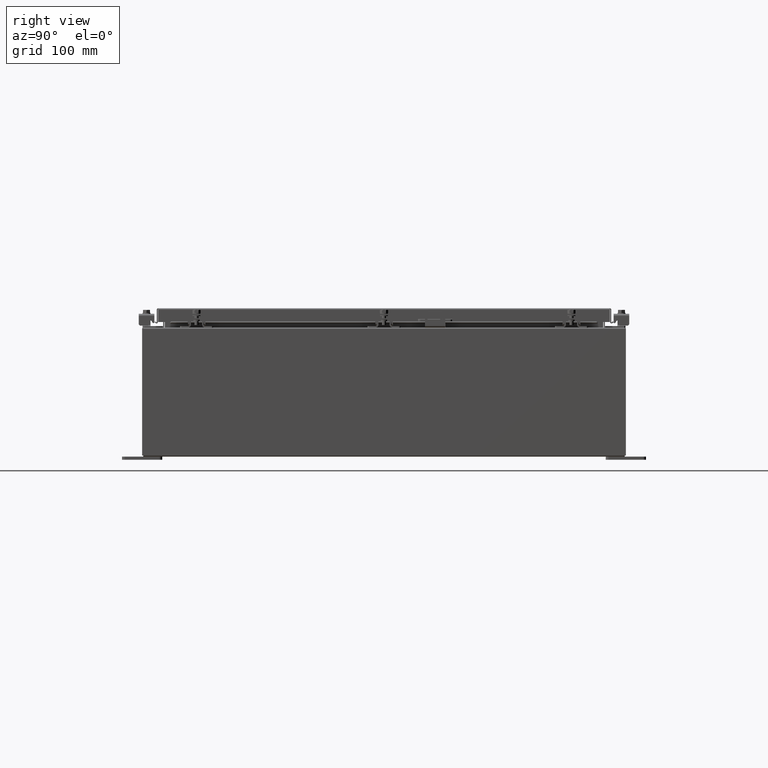
[diagram: clean part render]
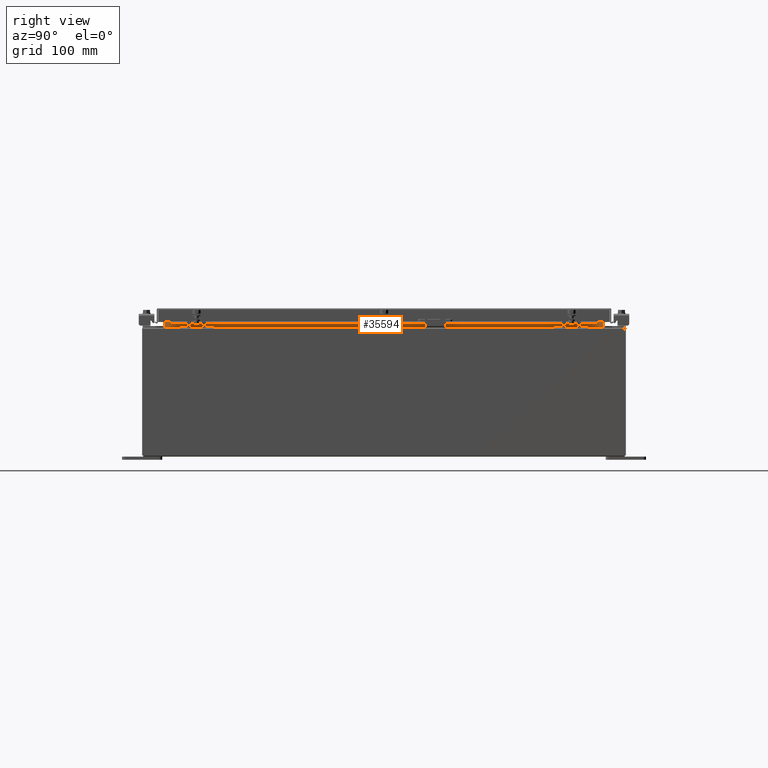
[diagram: same view with one face highlighted and labeled with its STEP entity id]
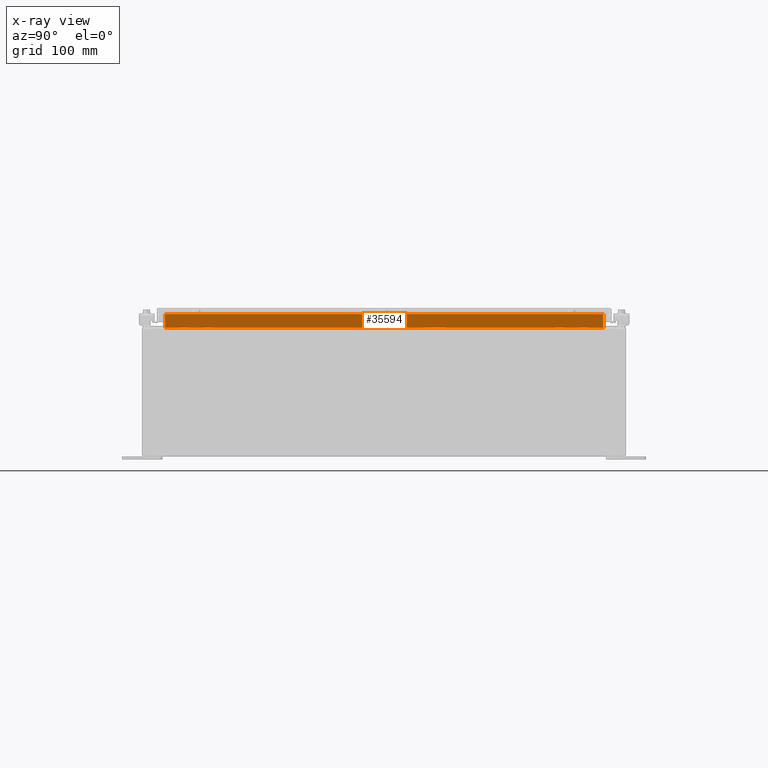
[diagram: x-ray of the same camera — body ghosted, the highlighted face saturated]
A machine part, right view. The second image highlights one B-rep face of the part: STEP entity #35594.
The next image is the same camera in x-ray: the body ghosted, the highlighted face saturated — about 0% of this face is hidden behind the body in this view.
In plain terms, the highlighted planar face has unit normal (1, 0, -0).
Its self-contained STEP definition (entity closure, byte-faithful):
#460 = CARTESIAN_POINT ( 'NONE',  ( 13.69970000000003000, 13.59375000000000200, 7.925300000000007100 ) ) ;
#1938 = ORIENTED_EDGE ( 'NONE', *, *, #18844, .F. ) ;
#1941 = VERTEX_POINT ( 'NONE', #22922 ) ;
#2640 = CARTESIAN_POINT ( 'NONE',  ( 13.69970000000003200, -13.59375000000000200, 8.850600000000007100 ) ) ;
#3001 = CARTESIAN_POINT ( 'NONE',  ( 13.69970000000003200, 13.59375000000000200, 8.762900000000007200 ) ) ;
#4916 = VECTOR ( 'NONE', #23511, 39.37007874015748100 ) ;
#6537 = VERTEX_POINT ( 'NONE', #8404 ) ;
#7351 = PLANE ( 'NONE',  #27052 ) ;
#8404 = CARTESIAN_POINT ( 'NONE',  ( 13.69970000000003000, -13.59375000000000400, 7.938300000000010600 ) ) ;
#9483 = DIRECTION ( 'NONE',  ( -2.361913319930196000E-015, -0.0000000000000000000, -1.000000000000000000 ) ) ;
#10400 = CARTESIAN_POINT ( 'NONE',  ( 13.69970000000001100, 0.0000000000000000000, -3.235750390904772800E-014 ) ) ;
#11330 = VERTEX_POINT ( 'NONE', #17872 ) ;
#11977 = LINE ( 'NONE', #460, #34816 ) ;
#13764 = VERTEX_POINT ( 'NONE', #3001 ) ;
#15842 = LINE ( 'NONE', #15846, #30769 ) ;
#15846 = CARTESIAN_POINT ( 'NONE',  ( 13.69970000000003200, -13.59375000000000200, 8.762900000000007200 ) ) ;
#16380 = DIRECTION ( 'NONE',  ( -2.361913319930196000E-015, 0.0000000000000000000, -1.000000000000000000 ) ) ;
#16493 = CARTESIAN_POINT ( 'NONE',  ( 13.69970000000003000, 13.59375000000000200, 7.938300000000007900 ) ) ;
#17201 = ORIENTED_EDGE ( 'NONE', *, *, #27530, .F. ) ;
#17872 = CARTESIAN_POINT ( 'NONE',  ( 13.69970000000003200, -13.59375000000000200, 8.762900000000007200 ) ) ;
#18830 = DIRECTION ( 'NONE',  ( 0.0000000000000000000, 1.000000000000000000, 0.0000000000000000000 ) ) ;
#18844 = EDGE_CURVE ( 'NONE', #13764, #1941, #11977, .T. ) ;
#19301 = EDGE_CURVE ( 'NONE', #6537, #11330, #20801, .T. ) ;
#20801 = LINE ( 'NONE', #2640, #4916 ) ;
#22337 = ORIENTED_EDGE ( 'NONE', *, *, #31031, .F. ) ;
#22359 = DIRECTION ( 'NONE',  ( 8.038541222736220000E-017, -1.000000000000000000, 2.411562366820865800E-016 ) ) ;
#22922 = CARTESIAN_POINT ( 'NONE',  ( 13.69970000000003000, 13.59374999999998600, 7.938300000000010600 ) ) ;
#23511 = DIRECTION ( 'NONE',  ( 2.361913319930201500E-015, -0.0000000000000000000, 1.000000000000000000 ) ) ;
#27052 = AXIS2_PLACEMENT_3D ( 'NONE', #10400, #34263, #16380 ) ;
#27530 = EDGE_CURVE ( 'NONE', #1941, #6537, #30739, .T. ) ;
#28844 = VECTOR ( 'NONE', #22359, 39.37007874015748100 ) ;
#30739 = LINE ( 'NONE', #16493, #28844 ) ;
#30769 = VECTOR ( 'NONE', #18830, 39.37007874015748100 ) ;
#31031 = EDGE_CURVE ( 'NONE', #11330, #13764, #15842, .T. ) ;
#31945 = ORIENTED_EDGE ( 'NONE', *, *, #19301, .F. ) ;
#32234 = EDGE_LOOP ( 'NONE', ( #1938, #22337, #31945, #17201 ) ) ;
#34238 = FACE_OUTER_BOUND ( 'NONE', #32234, .T. ) ;
#34263 = DIRECTION ( 'NONE',  ( 1.000000000000000000, 0.0000000000000000000, -2.361913319930196000E-015 ) ) ;
#34816 = VECTOR ( 'NONE', #9483, 39.37007874015748100 ) ;
#35594 = ADVANCED_FACE ( 'NONE', ( #34238 ), #7351, .T. ) ;